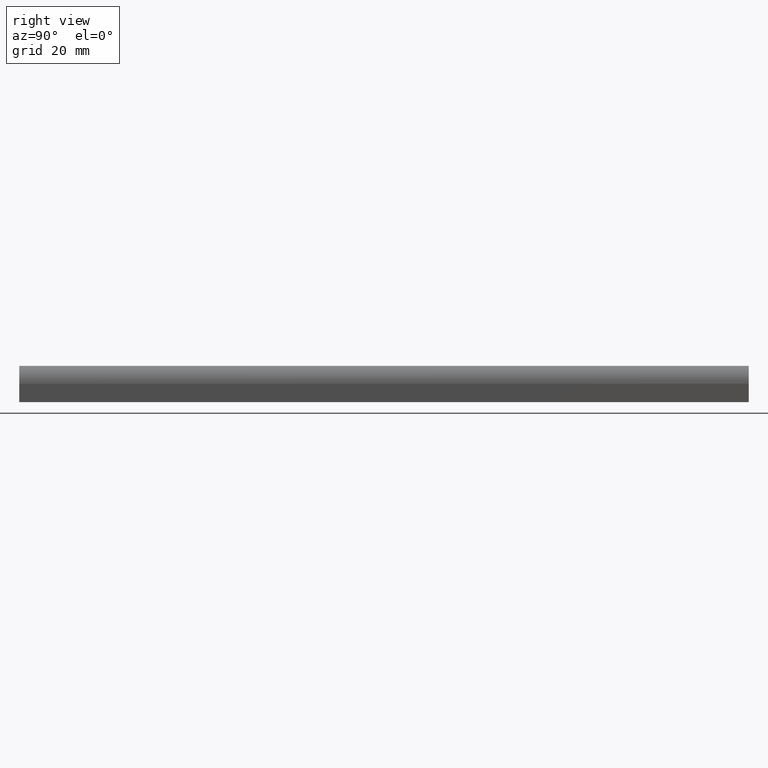
[diagram: clean part render]
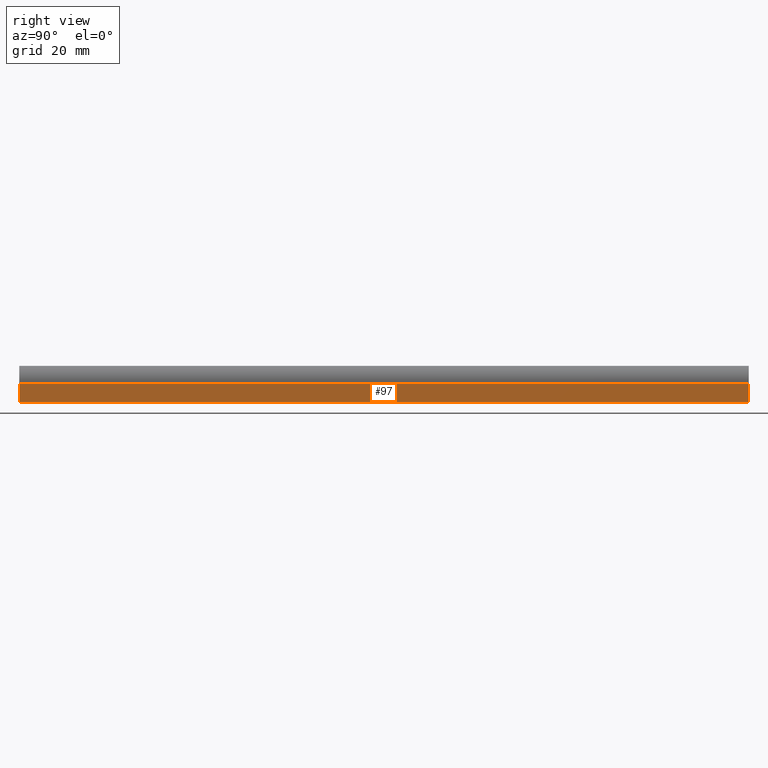
[diagram: same view with one face highlighted and labeled with its STEP entity id]
A machine part, right view. The second image highlights one B-rep face of the part: STEP entity #97.
In plain terms, the highlighted planar face has unit normal (1, 0, 0).
Its self-contained STEP definition (entity closure, byte-faithful):
#3 = CARTESIAN_POINT ( 'NONE',  ( 5.000000000000000000, 200.0000000000000000, -5.000000000000000000 ) ) ;
#7 = VERTEX_POINT ( 'NONE', #163 ) ;
#13 = EDGE_CURVE ( 'NONE', #206, #7, #103, .T. ) ;
#27 = VECTOR ( 'NONE', #226, 1000.000000000000000 ) ;
#30 = LINE ( 'NONE', #213, #125 ) ;
#31 = EDGE_CURVE ( 'NONE', #7, #51, #30, .T. ) ;
#32 = CARTESIAN_POINT ( 'NONE',  ( 5.000000000000000000, 200.0000000000000000, 0.0000000000000000000 ) ) ;
#33 = DIRECTION ( 'NONE',  ( -0.0000000000000000000, -0.0000000000000000000, 1.000000000000000000 ) ) ;
#38 = DIRECTION ( 'NONE',  ( 0.0000000000000000000, -1.000000000000000000, 0.0000000000000000000 ) ) ;
#41 = EDGE_CURVE ( 'NONE', #206, #90, #171, .T. ) ;
#50 = AXIS2_PLACEMENT_3D ( 'NONE', #153, #112, #156 ) ;
#51 = VERTEX_POINT ( 'NONE', #152 ) ;
#54 = EDGE_CURVE ( 'NONE', #90, #51, #165, .T. ) ;
#61 = CARTESIAN_POINT ( 'NONE',  ( 5.000000000000000000, 0.0000000000000000000, -5.000000000000000000 ) ) ;
#62 = PLANE ( 'NONE',  #50 ) ;
#65 = FACE_OUTER_BOUND ( 'NONE', #167, .T. ) ;
#89 = CARTESIAN_POINT ( 'NONE',  ( 5.000000000000000000, 0.0000000000000000000, 0.0000000000000000000 ) ) ;
#90 = VERTEX_POINT ( 'NONE', #61 ) ;
#95 = DIRECTION ( 'NONE',  ( -0.0000000000000000000, -0.0000000000000000000, 1.000000000000000000 ) ) ;
#97 = ADVANCED_FACE ( 'NONE', ( #65 ), #62, .T. ) ;
#103 = LINE ( 'NONE', #32, #124 ) ;
#112 = DIRECTION ( 'NONE',  ( 1.000000000000000000, 0.0000000000000000000, 0.0000000000000000000 ) ) ;
#116 = CARTESIAN_POINT ( 'NONE',  ( 5.000000000000000000, 1000.000000000000000, -5.000000000000000000 ) ) ;
#122 = VECTOR ( 'NONE', #33, 1000.000000000000000 ) ;
#124 = VECTOR ( 'NONE', #95, 1000.000000000000000 ) ;
#125 = VECTOR ( 'NONE', #38, 1000.000000000000000 ) ;
#138 = ORIENTED_EDGE ( 'NONE', *, *, #31, .T. ) ;
#152 = CARTESIAN_POINT ( 'NONE',  ( 5.000000000000000000, 0.0000000000000000000, 0.0000000000000000000 ) ) ;
#153 = CARTESIAN_POINT ( 'NONE',  ( 5.000000000000000000, 1000.000000000000000, -5.000000000000000000 ) ) ;
#155 = ORIENTED_EDGE ( 'NONE', *, *, #54, .F. ) ;
#156 = DIRECTION ( 'NONE',  ( 0.0000000000000000000, 0.0000000000000000000, -1.000000000000000000 ) ) ;
#163 = CARTESIAN_POINT ( 'NONE',  ( 5.000000000000000000, 200.0000000000000000, 0.0000000000000000000 ) ) ;
#165 = LINE ( 'NONE', #89, #122 ) ;
#167 = EDGE_LOOP ( 'NONE', ( #155, #232, #172, #138 ) ) ;
#171 = LINE ( 'NONE', #116, #27 ) ;
#172 = ORIENTED_EDGE ( 'NONE', *, *, #13, .T. ) ;
#206 = VERTEX_POINT ( 'NONE', #3 ) ;
#213 = CARTESIAN_POINT ( 'NONE',  ( 5.000000000000000000, 1000.000000000000000, 0.0000000000000000000 ) ) ;
#226 = DIRECTION ( 'NONE',  ( 0.0000000000000000000, -1.000000000000000000, 0.0000000000000000000 ) ) ;
#232 = ORIENTED_EDGE ( 'NONE', *, *, #41, .F. ) ;